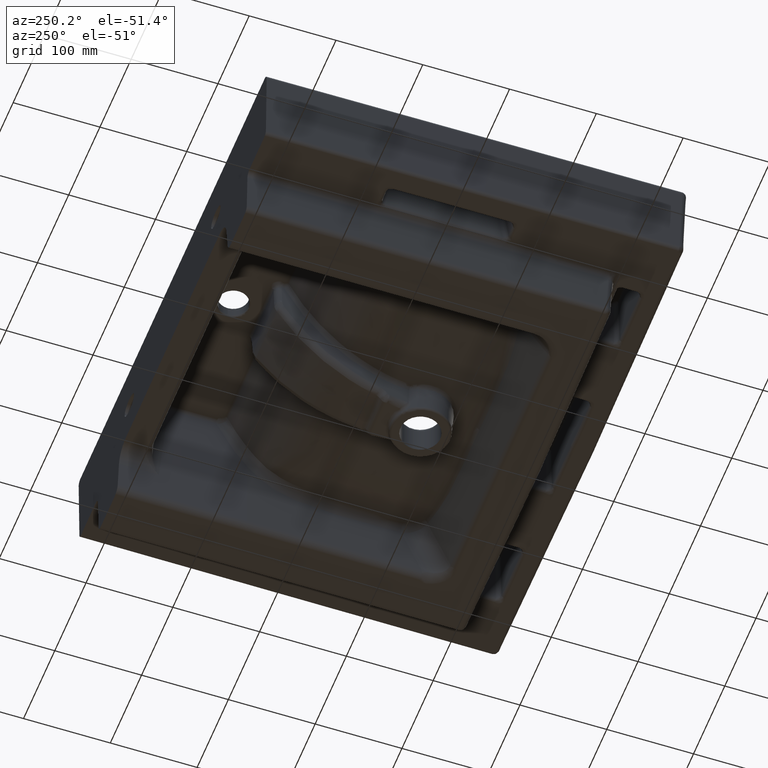
[diagram: clean part render]
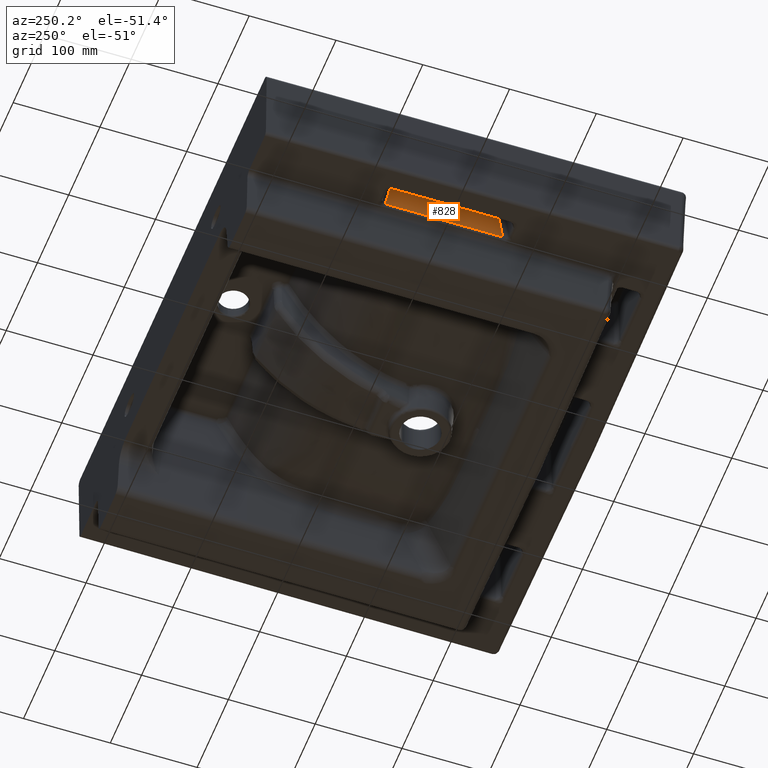
[diagram: same view with one face highlighted and labeled with its STEP entity id]
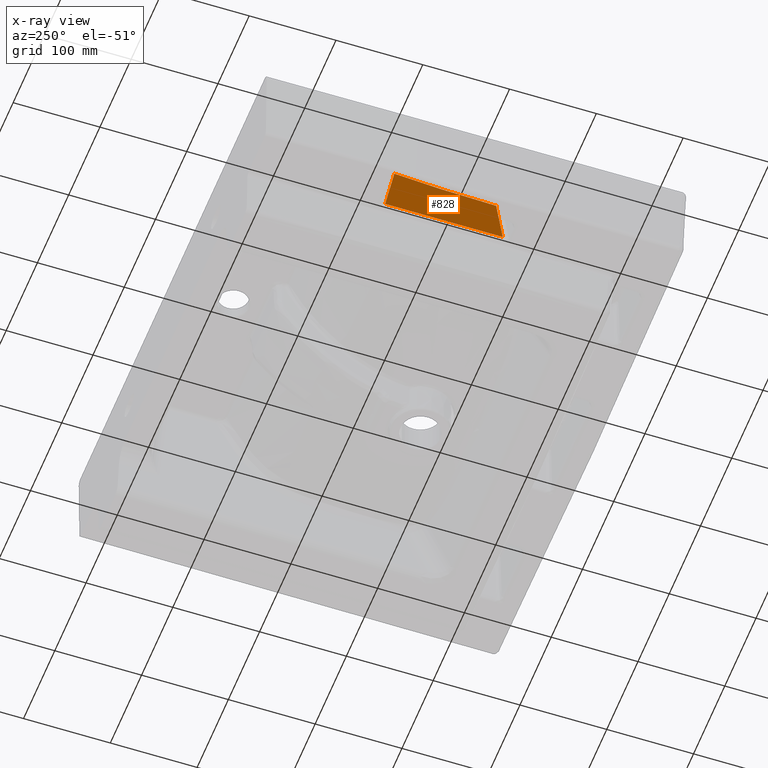
[diagram: x-ray of the same camera — body ghosted, the highlighted face saturated]
A machine part, auxiliary view. The second image highlights one B-rep face of the part: STEP entity #828.
The next image is the same camera in x-ray: the body ghosted, the highlighted face saturated — about 0% of this face is hidden behind the body in this view.
In plain terms, the highlighted planar face has unit normal (0.9986, 0, 0.0531).
Its self-contained STEP definition (entity closure, byte-faithful):
#828=ADVANCED_FACE('',(#1180),#979,.F.);
#979=PLANE('',#5259);
#1180=FACE_OUTER_BOUND('',#1522,.T.);
#1522=EDGE_LOOP('',(#2853,#2854,#2855,#2856));
#1723=LINE('',#23035,#1805);
#1724=LINE('',#23049,#1806);
#1805=VECTOR('',#5823,1.);
#1806=VECTOR('',#5824,1.);
#2853=ORIENTED_EDGE('',*,*,#4412,.F.);
#2854=ORIENTED_EDGE('',*,*,#4413,.T.);
#2855=ORIENTED_EDGE('',*,*,#4414,.F.);
#2856=ORIENTED_EDGE('',*,*,#4415,.F.);
#3762=VERTEX_POINT('',#23036);
#3763=VERTEX_POINT('',#23037);
#3764=VERTEX_POINT('',#23048);
#3765=VERTEX_POINT('',#23050);
#4412=EDGE_CURVE('',#3762,#3763,#1723,.T.);
#4413=EDGE_CURVE('',#3762,#3764,#4976,.T.);
#4414=EDGE_CURVE('',#3765,#3764,#1724,.T.);
#4415=EDGE_CURVE('',#3763,#3765,#4977,.T.);
#4976=B_SPLINE_CURVE_WITH_KNOTS('',3,(#23038,#23039,#23040,#23041,#23042,
#23043,#23044,#23045,#23046,#23047),.UNSPECIFIED.,.F.,.F.,(4,3,3,4),(0.,
0.177463629770151,0.887318148850757,1.),.UNSPECIFIED.);
#4977=B_SPLINE_CURVE_WITH_KNOTS('',3,(#23051,#23052,#23053,#23054,#23055,
#23056,#23057,#23058,#23059,#23060),.UNSPECIFIED.,.F.,.F.,(4,2,2,2,4),(0.,
0.125,0.25,0.5,1.),.UNSPECIFIED.);
#5259=AXIS2_PLACEMENT_3D('',#23061,#5825,#5826);
#5823=DIRECTION('',(-0.0523381848616786,-0.173410178592494,0.983457993188272));
#5824=DIRECTION('',(0.0523381848616786,-0.173410178592494,-0.983457993188272));
#5825=DIRECTION('',(0.998586895192138,0.,0.0531433227275731));
#5826=DIRECTION('',(0.0531433227275731,0.,-0.998586895192137));
#23035=CARTESIAN_POINT('',(-250.354557552884,-157.499905066689,-39.17425915544));
#23036=CARTESIAN_POINT('',(-247.413342114123,-147.754884373625,-94.4410178438116));
#23037=CARTESIAN_POINT('',(-250.240496485373,-157.121990736269,-41.3175178269249));
#23038=CARTESIAN_POINT('',(-247.413342114123,-147.754884373625,-94.4410178438116));
#23039=CARTESIAN_POINT('',(-247.413342114123,-155.754884373625,-94.4410178438116));
#23040=CARTESIAN_POINT('',(-247.413342114123,-163.754884373625,-94.4410178438115));
#23041=CARTESIAN_POINT('',(-247.413342114123,-171.754884373625,-94.4410178438115));
#23042=CARTESIAN_POINT('',(-247.413342114123,-203.754884373625,-94.4410178438115));
#23043=CARTESIAN_POINT('',(-247.413342114123,-235.754884373625,-94.4410178438113));
#23044=CARTESIAN_POINT('',(-247.413342114123,-267.754884373625,-94.4410178438115));
#23045=CARTESIAN_POINT('',(-247.413342114123,-272.834543852931,-94.4410178438115));
#23046=CARTESIAN_POINT('',(-247.413342114123,-277.914203332237,-94.4410178438115));
#23047=CARTESIAN_POINT('',(-247.413342114123,-282.993862811542,-94.4410178438115));
#23048=CARTESIAN_POINT('',(-247.413342114123,-282.993862811542,-94.4410178438115));
#23049=CARTESIAN_POINT('',(-247.148901842477,-283.87002301569,-99.4099692806659));
#23050=CARTESIAN_POINT('',(-249.942032459013,-274.615646305347,-46.9257908914062));
#23051=CARTESIAN_POINT('',(-250.240496485373,-157.121990736269,-41.3175178269249));
#23052=CARTESIAN_POINT('',(-250.19228356091,-161.973560635383,-42.2234603250049));
#23053=CARTESIAN_POINT('',(-250.166645257877,-166.853867062884,-42.7052155504862));
#23054=CARTESIAN_POINT('',(-250.12982400345,-176.632880962797,-43.3971034537545));
#23055=CARTESIAN_POINT('',(-250.118073835511,-181.530866392783,-43.6178943851309));
#23056=CARTESIAN_POINT('',(-250.082294630565,-196.224149668802,-44.2902017107806));
#23057=CARTESIAN_POINT('',(-250.05230332302,-206.011857799228,-44.8537518455234));
#23058=CARTESIAN_POINT('',(-249.983739362669,-235.402236157567,-46.1420994454695));
#23059=CARTESIAN_POINT('',(-249.951042710582,-255.00272511584,-46.7564842188406));
#23060=CARTESIAN_POINT('',(-249.942032459013,-274.615646305347,-46.9257908914062));
#23061=CARTESIAN_POINT('',(-247.194556533355,8.17072485359748,-98.552097140303));